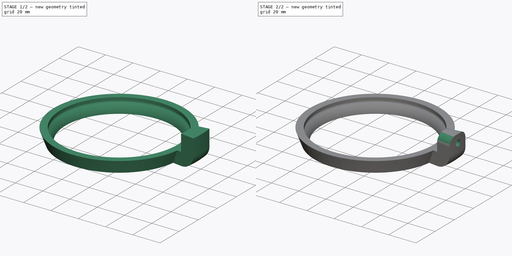
[diagram: build sequence overview — one tinted view per stage of 2, left to right]
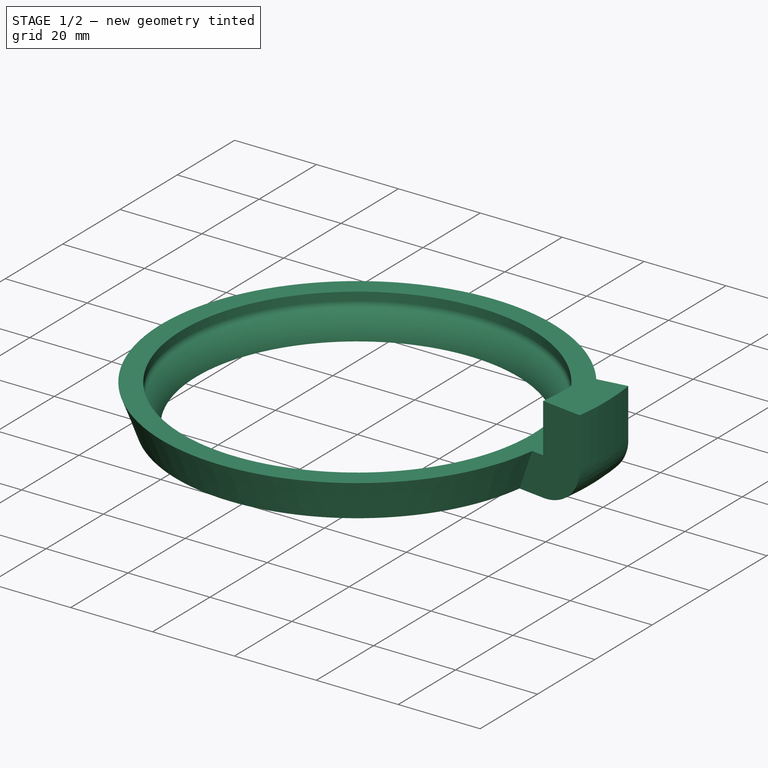
[diagram: stage 1 of 2 — iso view after this stage's code; geometry added in this stage tinted green]
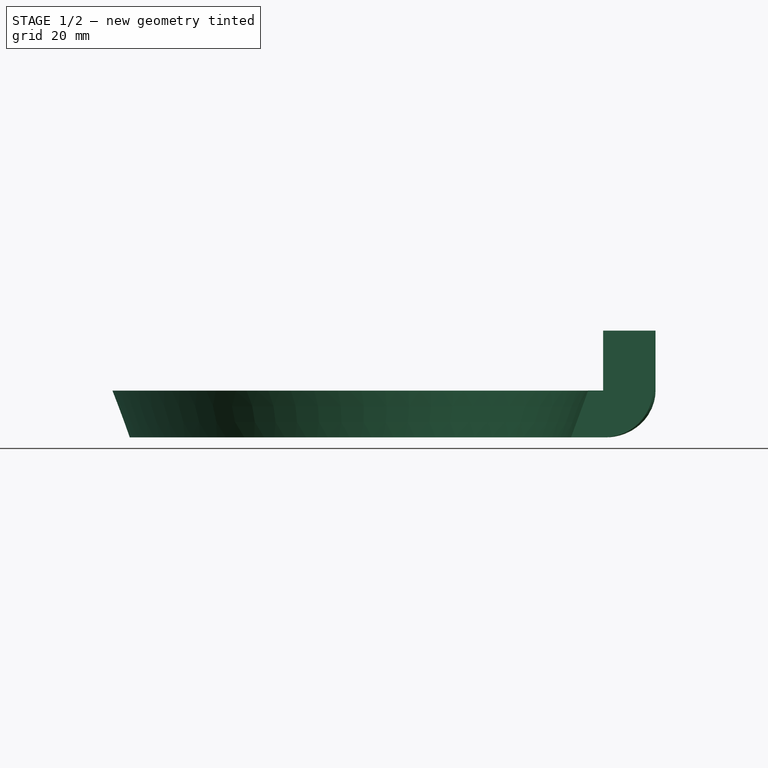
[diagram: stage 1 of 2 — front view after this stage's code; geometry added in this stage tinted green]
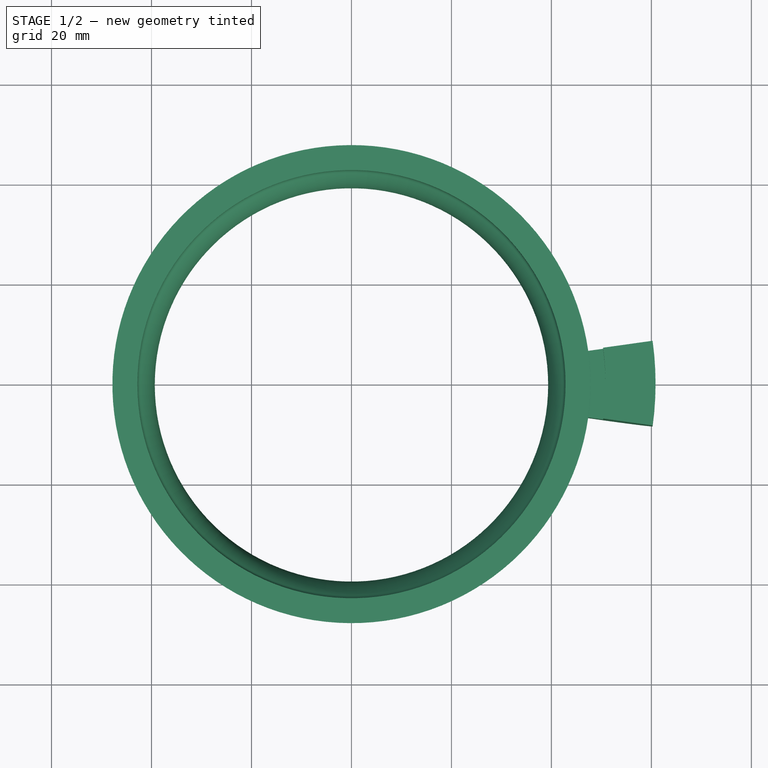
[diagram: stage 1 of 2 — top view after this stage's code; geometry added in this stage tinted green]
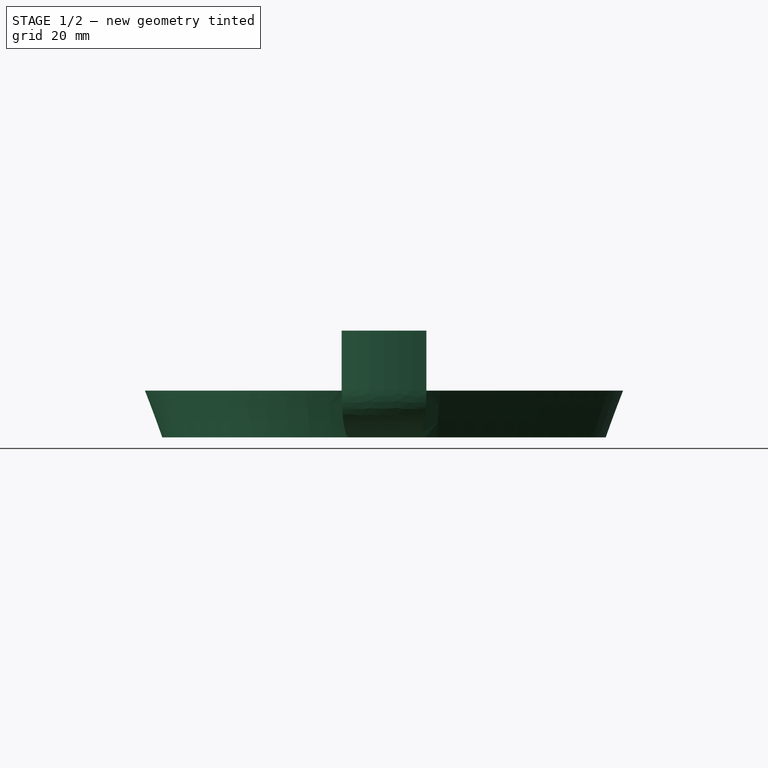
[diagram: stage 1 of 2 — right view after this stage's code; geometry added in this stage tinted green]
FCSTD DOCUMENT  (FreeCAD 0.19R24366 (Git))
Label: ferris wheel ring 3
License: All rights reserved
LicenseURL: http://en.wikipedia.org/wiki/All_rights_reserved
objects: Sketcher::SketchObject×3, PartDesign::Revolution×2, PartDesign::Plane×1, PartDesign::Groove×1, PartDesign::Fillet×1, PartDesign::Body×1
note: 13 computed .brp shape members not serialized (recipe doc carries the construction recipe); baked Part::Feature solids carry a one-line shape summary decoded from their .brp

FEATURE [Sketcher::SketchObject] Sketch
  FullyConstrained = false
  MapMode = 5
  Placement = pos=(0,0,0) rot=(1,0,0;1.5708rad)
  Support = -> [XZ_Plane]
  sketch-geometry (11):
    g0: LineSegment StartX=42.5 StartY=51 StartZ=0 EndX=42.5 EndY=58 EndZ=0
    g1: LineSegment StartX=42.5 StartY=58 StartZ=0 EndX=55.07 EndY=58 EndZ=0
    g2: ArcOfCircle CenterX=41 CenterY=51 CenterZ=0 NormalX=0 NormalY=0 NormalZ=1 AngleXU=0 Radius=1.5 StartAngle=6.02364 EndAngle=6.28319
    g3: ArcOfCircle CenterX=49.6859 CenterY=43.3555 CenterZ=0 NormalX=0 NormalY=0 NormalZ=1 AngleXU=0 Radius=10.25 StartAngle=2.35458 EndAngle=3.0297
    g4: LineSegment StartX=39.5 StartY=44.5 StartZ=0 EndX=34.5 EndY=0 EndZ=0
    g5: ArcOfCircle CenterX=49.6599 CenterY=42.538 CenterZ=0 NormalX=0 NormalY=0 NormalZ=1 AngleXU=0 Radius=10.3845 StartAngle=2.35909 EndAngle=3.02163
    g6: ArcOfCircle CenterX=40.9999 CenterY=51.148 CenterZ=0 NormalX=0 NormalY=0 NormalZ=1 AngleXU=0 Radius=1.82728 StartAngle=5.50068 EndAngle=6.28319
    g7: LineSegment StartX=42.8272 StartY=51.148 StartZ=0 EndX=42.8272 EndY=53.148 EndZ=0
    g8: LineSegment StartX=42.8272 StartY=53.148 StartZ=0 EndX=47.8272 EndY=53.148 EndZ=0
    g9: LineSegment StartX=47.8272 StartY=53.148 StartZ=0 EndX=44.35 EndY=43.7808 EndZ=0
    g10: LineSegment StartX=44.35 StartY=43.7808 StartZ=0 EndX=39.35 EndY=43.7808 EndZ=0
  constraints (35):
    c: Vertical(g0)
    c: Coincident(g1,g0)
    c: Horizontal(g1)
    c: Coincident(g2,g0)
    c: Tangent(g0,g2)
    c: Diameter(g2) = 3
    c: Coincident(g4,g3)
    c: PointOnObject(g4,g-1)
    c: Distance(g4,g-1) = 34.5
    c: Diameter(g3) = 20.5
    c: Tangent(g3,g4)
    c: Distance(g0,g-2) = 42.5
    c: Distance(g3,g-2) = 39.5
    c: Distance(g0) = 7
    c: Distance(g0,g-1) = 58
    c: DistanceY(g3,g0) = 6.5
    c: Coincident(g2,g3)
    c: Coincident(g6,g5)
    c: Coincident(g7,g6)
    c: Vertical(g7)
    c: Coincident(g8,g7)
    c: Horizontal(g8)
    c: Coincident(g9,g8)
    c: Coincident(g10,g9)
    c: Coincident(g10,g5)
    c: Horizontal(g10)
    c: Tangent(g7,g6)
    c: Tangent(g6,g5)
    c: DistanceX(g5) = 39.35
    c: DistanceY(g5) = 43.7808
    c: Distance(g7) = 2
    c: Distance(g8) = 5
    c: DistanceX(g5) = 42.2957
    c: DistanceY(g5) = 49.8597
    c: Equal(g10,g8)
FEATURE [PartDesign::Revolution] Revolution
  Angle = 360
  Axis = (0,-2e-16,1)
  Base = (0,0,0)
  Placement = pos=(0,0,0) rot=(1,0,0;1.5708rad)
  Profile = -> Sketch
  ReferenceAxis = -> Sketch [V_Axis]
  Reversed = true
FEATURE [PartDesign::Plane] DatumPlane
  Length = 129.048
  MapMode = 5
  Placement = pos=(0,-9.7e-15,43.7808) rot=(0,0,1;3.14159rad)
  ResizeMode = 0
  Support = -> [Revolution]
  Width = 116.026
FEATURE [Sketcher::SketchObject] Sketch003
  AttachmentOffset = pos=(51,59,0) rot=(0,0,1;3.14159rad)
  FullyConstrained = false
  MapMode = 5
  Placement = pos=(51,-1.31e-14,59) rot=(0,-0.707107,0.707107;3.14159rad)
  Support = -> [XZ_Plane]
  sketch-geometry (6):
    g0: LineSegment StartX=0 StartY=5 StartZ=0 EndX=-2 EndY=2.25 EndZ=0
    g1: LineSegment StartX=-2 StartY=2.25 StartZ=0 EndX=-42.2228 EndY=2.25 EndZ=0
    g2: LineSegment StartX=-42.2228 StartY=2.25 StartZ=0 EndX=-42.2228 EndY=0 EndZ=0
    g3: LineSegment StartX=-42.2228 StartY=0 StartZ=0 EndX=36.1925 EndY=0 EndZ=0
    g4: LineSegment StartX=36.1925 StartY=0 StartZ=0 EndX=36.1925 EndY=5 EndZ=0
    g5: LineSegment StartX=36.1925 StartY=5 StartZ=0 EndX=0 EndY=5 EndZ=0
  constraints (16):
    c: PointOnObject(g0,g-2)
    c: Coincident(g0,g1)
    c: Horizontal(g1)
    c: Coincident(g1,g2)
    c: PointOnObject(g2,g-1)
    c: Coincident(g2,g3)
    c: PointOnObject(g3,g-1)
    c: Coincident(g3,g4)
    c: Vertical(g4)
    c: Coincident(g4,g5)
    c: Coincident(g5,g0)
    c: Horizontal(g5)
    c: Distance(g0,g-1) = 5
    c: Distance(g2) = 2.25
    c: Distance(g0,g-2) = 2
    c: Vertical(g2)
FEATURE [Sketcher::SketchObject] Sketch004
  FullyConstrained = false
  MapMode = 5
  Placement = pos=(0,0,0) rot=(1,0,0;1.5708rad)
  Support = -> [XZ_Plane]
  expr: Constraints[32] = Sketch.Constraints[32]
  expr: Constraints[29] = Sketch.Constraints[29]
  expr: Constraints[31] = Sketch.Constraints[31]
  expr: Constraints[30] = Sketch.Constraints[30]
  expr: Constraints[28] = Sketch.Constraints[28]
  expr: Constraints[33] = Sketch.Constraints[33]
  expr: Constraints[15] = Sketch.Constraints[15]
  expr: Constraints[13] = Sketch.Constraints[13]
  expr: Constraints[12] = Sketch.Constraints[12]
  expr: Constraints[11] = Sketch.Constraints[11]
  expr: Constraints[14] = Sketch.Constraints[14]
  expr: Constraints[9] = Sketch.Constraints[9]
  expr: Constraints[8] = Sketch.Constraints[8]
  expr: Constraints[5] = Sketch.Constraints[5]
  sketch-geometry (23):
    g0: LineSegment StartX=42.5 StartY=51 StartZ=0 EndX=42.5 EndY=58 EndZ=0
    g1: LineSegment StartX=42.5 StartY=58 StartZ=0 EndX=55.07 EndY=58 EndZ=0
    g2: ArcOfCircle CenterX=41 CenterY=51 CenterZ=0 NormalX=0 NormalY=0 NormalZ=1 AngleXU=0 Radius=1.5 StartAngle=6.02364 EndAngle=6.28319
    g3: ArcOfCircle CenterX=49.6859 CenterY=43.3555 CenterZ=0 NormalX=0 NormalY=0 NormalZ=1 AngleXU=0 Radius=10.25 StartAngle=2.35458 EndAngle=3.0297
    g4: LineSegment StartX=39.5 StartY=44.5 StartZ=0 EndX=34.5 EndY=0 EndZ=0
    g5: ArcOfCircle CenterX=49.6603 CenterY=42.5378 CenterZ=0 NormalX=0 NormalY=0 NormalZ=1 AngleXU=0 Radius=10.385 StartAngle=2.35911 EndAngle=3.02161
    g6: ArcOfCircle CenterX=40.9873 CenterY=51.1605 CenterZ=0 NormalX=0 NormalY=0 NormalZ=1 AngleXU=0 Radius=1.845 StartAngle=5.5007 EndAngle=6.28318
    g7: LineSegment StartX=42.8323 StartY=51.1605 StartZ=0 EndX=42.8323 EndY=53.1605 EndZ=0
    g8: LineSegment StartX=42.8323 StartY=53.1605 StartZ=0 EndX=47.8323 EndY=53.1605 EndZ=0
    g9: LineSegment StartX=47.8323 StartY=53.1605 StartZ=0 EndX=44.35 EndY=43.7808 EndZ=0
    g10: LineSegment StartX=44.35 StartY=43.7808 StartZ=0 EndX=39.35 EndY=43.7808 EndZ=0
    g11: LineSegment StartX=47.8323 StartY=53.1605 StartZ=0 EndX=50.8323 EndY=53.1605 EndZ=0
    g12: LineSegment StartX=50.8323 StartY=53.1605 StartZ=0 EndX=50.8323 EndY=65.1605 EndZ=0
    g13: LineSegment StartX=50.8323 StartY=65.1605 StartZ=0 EndX=60.8323 EndY=65.1605 EndZ=0
    g14: LineSegment StartX=44.35 StartY=43.7808 StartZ=0 EndX=50.8323 EndY=43.7808 EndZ=0
    g15: LineSegment StartX=60.8323 StartY=65.1605 StartZ=0 EndX=60.8323 EndY=53.1605 EndZ=0
    g16: ArcOfEllipse CenterX=50.8323 CenterY=53.1605 CenterZ=0 NormalX=0 NormalY=0 NormalZ=1 MajorRadius=10 MinorRadius=9.37969 AngleXU=2e-15 StartAngle=4.71239 EndAngle=6.28319
    g17: LineSegment StartX=60.8323 StartY=53.1605 StartZ=0 EndX=40.8323 EndY=53.1605 EndZ=0
    g18: LineSegment StartX=50.8323 StartY=62.5401 StartZ=0 EndX=50.8323 EndY=43.7808 EndZ=0
    g19: GeomPoint X=54.2995 Y=53.1605 Z=0
    g20: GeomPoint X=47.3651 Y=53.1605 Z=0
    g21: LineSegment StartX=44.35 StartY=43.7808 StartZ=0 EndX=44.072 EndY=50.32 EndZ=0
    g22: LineSegment StartX=44.072 StartY=50.32 StartZ=0 EndX=47.8323 EndY=53.1605 EndZ=0
  constraints (60):
    c: Vertical(g0)
    c: Coincident(g1,g0)
    c: Horizontal(g1)
    c: Coincident(g2,g0)
    c: Tangent(g0,g2)
    c: Diameter(g2) = 3
    c: Coincident(g4,g3)
    c: PointOnObject(g4,g-1)
    c: Distance(g4,g-1) = 34.5
    c: Diameter(g3) = 20.5
    c: Tangent(g3,g4)
    c: Distance(g0,g-2) = 42.5
    c: Distance(g3,g-2) = 39.5
    c: Distance(g0) = 7
    c: Distance(g0,g-1) = 58
    c: DistanceY(g3,g0) = 6.5
    c: Coincident(g2,g3)
    c: Coincident(g6,g5)
    c: Coincident(g7,g6)
    c: Vertical(g7)
    c: Coincident(g8,g7)
    c: Horizontal(g8)
    c: Coincident(g9,g8)
    c: Coincident(g10,g9)
    c: Coincident(g10,g5)
    c: Horizontal(g10)
    c: Tangent(g7,g6)
    c: Tangent(g6,g5)
    c: DistanceX(g5) = 39.35
    c: DistanceY(g5) = 43.7808
    c: Distance(g7) = 2
    c: Distance(g8) = 5
    c: DistanceX(g5) = 42.2957
    c: DistanceY(g5) = 49.8597
    c: Equal(g10,g8)
    c: Coincident(g11,g8)
    c: Horizontal(g11)
    c: Coincident(g12,g11)
    c: Vertical(g12)
    c: Coincident(g13,g12)
    c: Horizontal(g13)
    c: Coincident(g14,g9)
    c: Horizontal(g14)
    c: Coincident(g15,g13)
    c: Vertical(g15)
    c: InternalAlignment(g17-g20 -> g16) x4
    c: Coincident(g16,g11)
    c: Coincident(g16,g14)
    c: Coincident(g16,g15)
    c: Horizontal(g17)
    c: PointOnObject(g15,g17)
    c: PointOnObject(g14,g18)
    c: Distance(g11) = 3
    c: Diameter(g6) = 3.69
    c: Diameter(g5) = 20.77
    c: Distance(g13) = 10
    c: Distance(g12) = 12
    c: Coincident(g21,g14)
    c: Coincident(g22,g21)
    c: Coincident(g22,g11)
FEATURE [PartDesign::Revolution] Revolution001
  Angle = 16
  Axis = (-3e-16,3e-16,1)
  Base = (0,0,0)
  BaseFeature = -> Revolution
  Midplane = true
  Placement = pos=(0,0,0) rot=(1,0,0;1.5708rad)
  Profile = -> Sketch004
  ReferenceAxis = -> Z_Axis
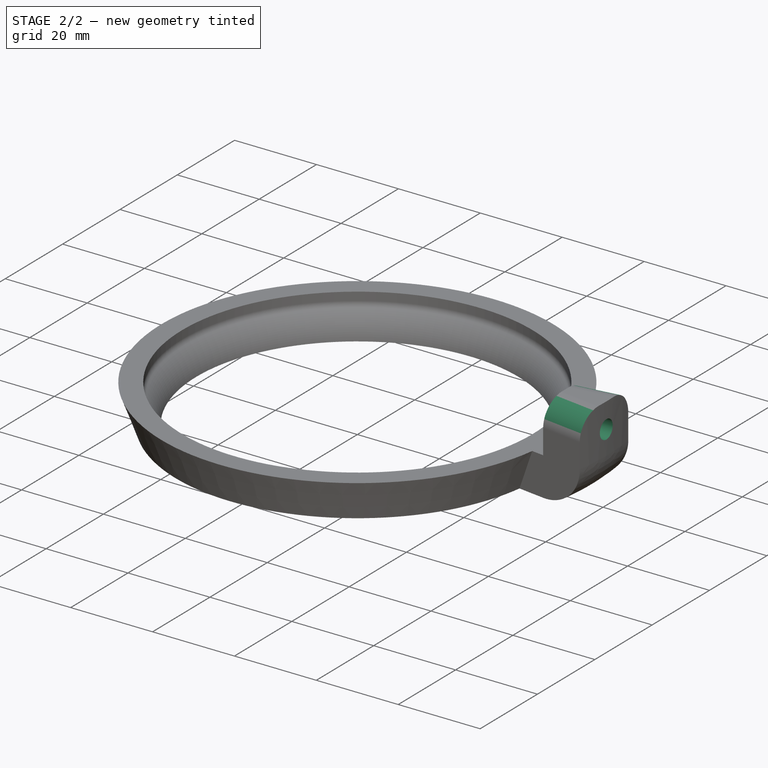
[diagram: stage 2 of 2 — iso view after this stage's code; geometry added in this stage tinted green]
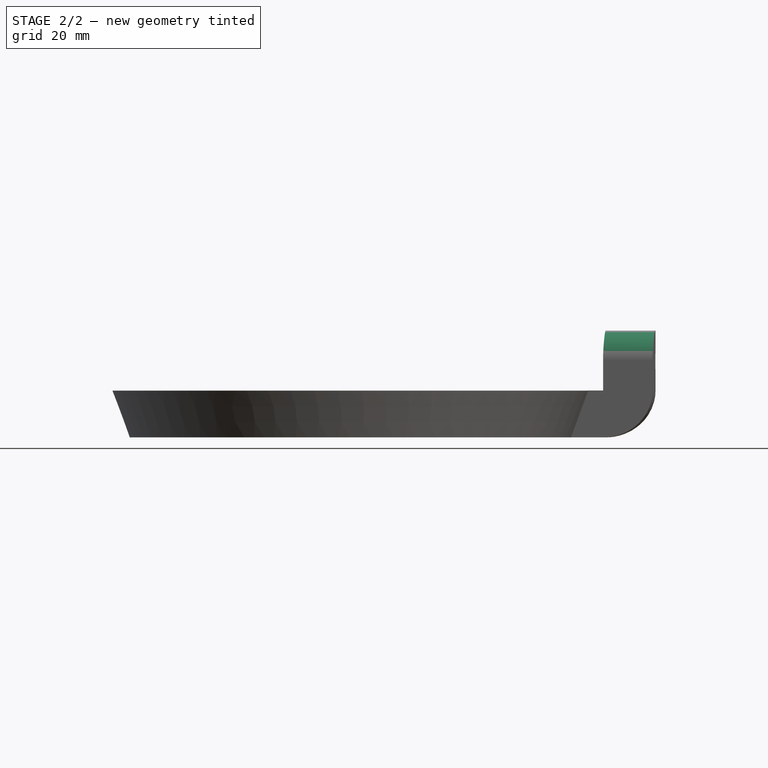
[diagram: stage 2 of 2 — front view after this stage's code; geometry added in this stage tinted green]
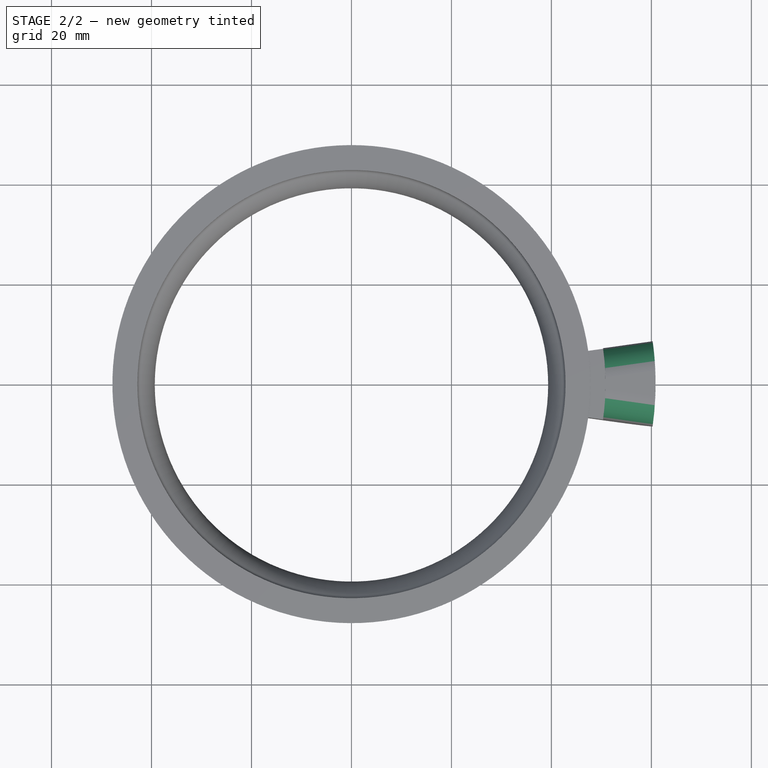
[diagram: stage 2 of 2 — top view after this stage's code; geometry added in this stage tinted green]
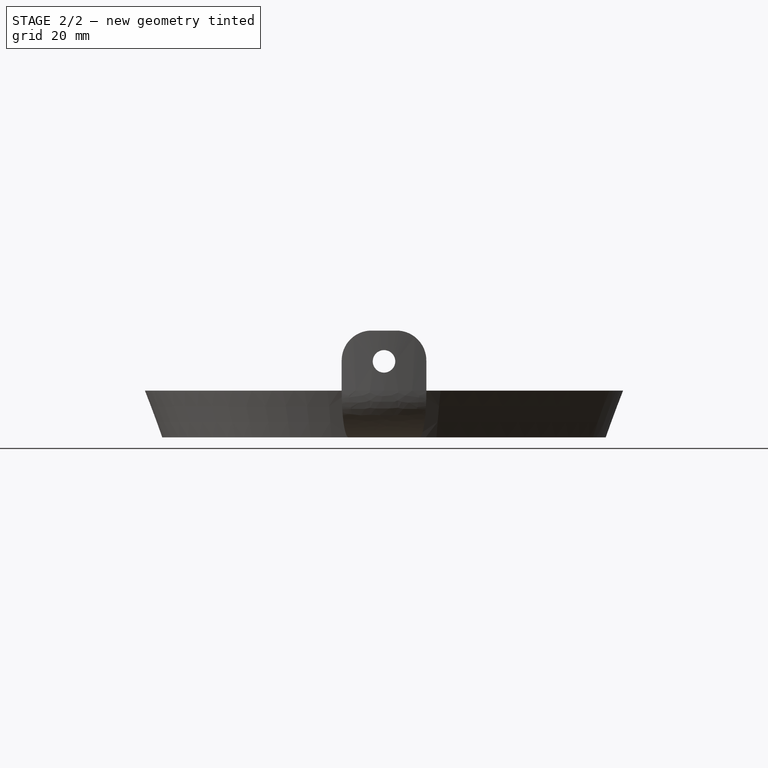
[diagram: stage 2 of 2 — right view after this stage's code; geometry added in this stage tinted green]
FEATURE [PartDesign::Groove] Groove
  Angle = 360
  Axis = (-1,0,1e-16)
  Base = (51,-1.31e-14,59)
  BaseFeature = -> Revolution001
  Placement = pos=(0,0,0) rot=(1,0,0;1.5708rad)
  Profile = -> Sketch003
  ReferenceAxis = -> Sketch003 [H_Axis]
  Reversed = true
FEATURE [PartDesign::Fillet] Fillet
  Base = -> Groove [Edge24,Edge29]
  BaseFeature = -> Groove
  Placement = pos=(0,0,0) rot=(1,0,0;1.5708rad)
  Radius = 6
  SupportTransform = false
FEATURE [PartDesign::Body] Body
  Group = -> [Sketch,Revolution,DatumPlane,Sketch003,Sketch004,Revolution001,Groove,Fillet]
  Origin = -> Origin
  Tip = -> Fillet
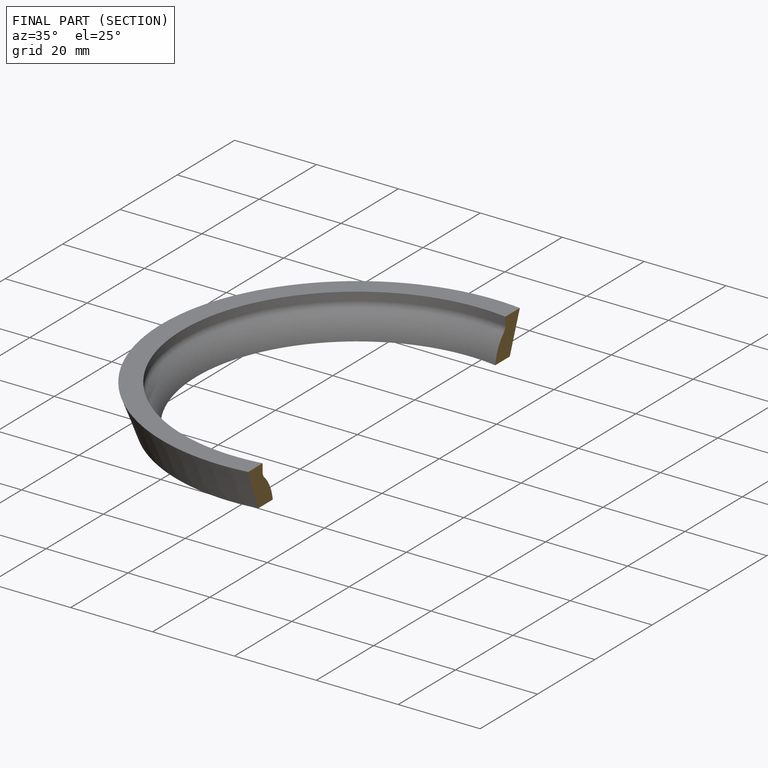
[diagram: finished part — half-section view (interior)]
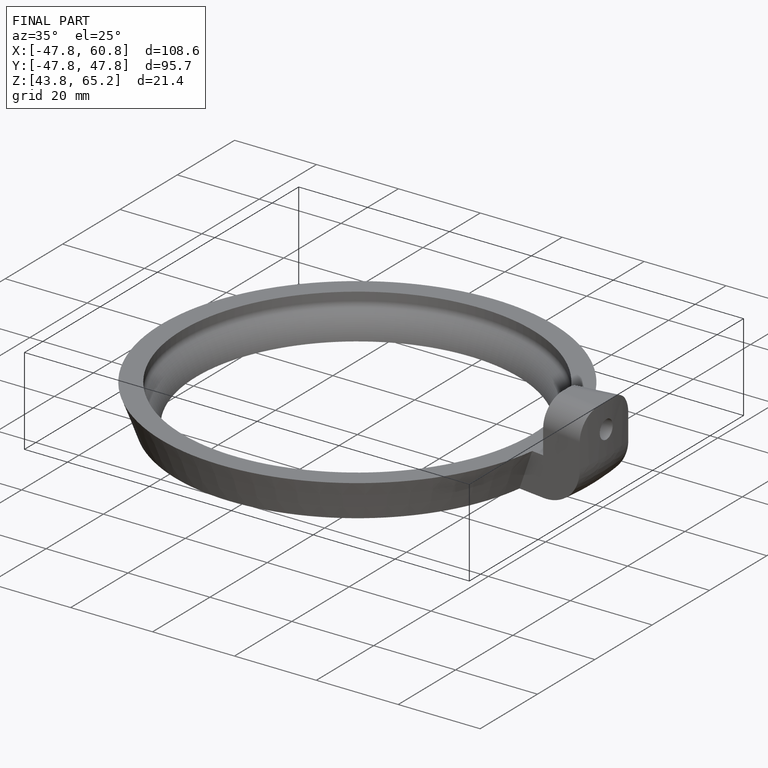
[diagram: finished part — iso view with bounding-box wireframe]
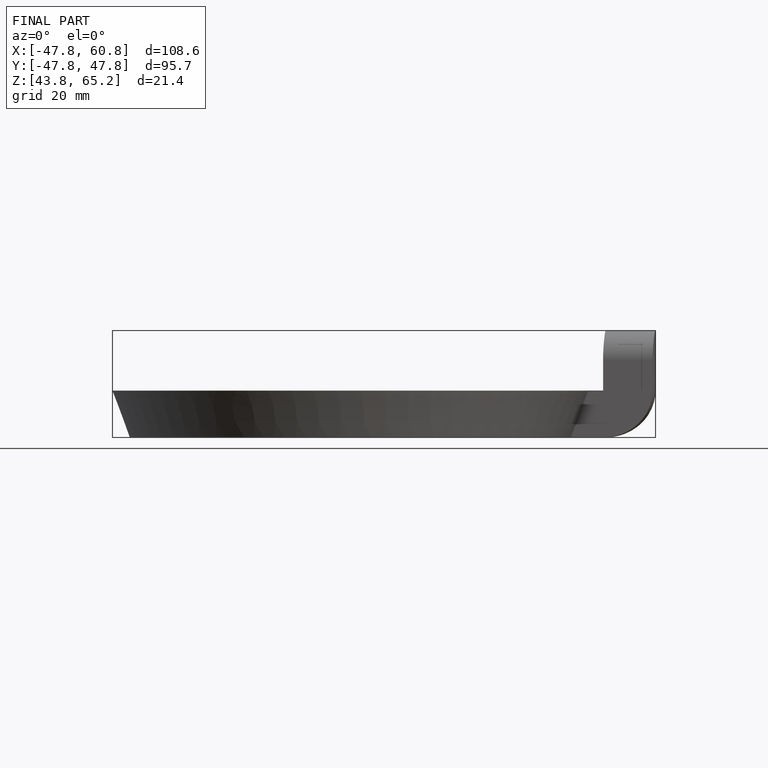
[diagram: finished part — front view with bounding-box wireframe]
